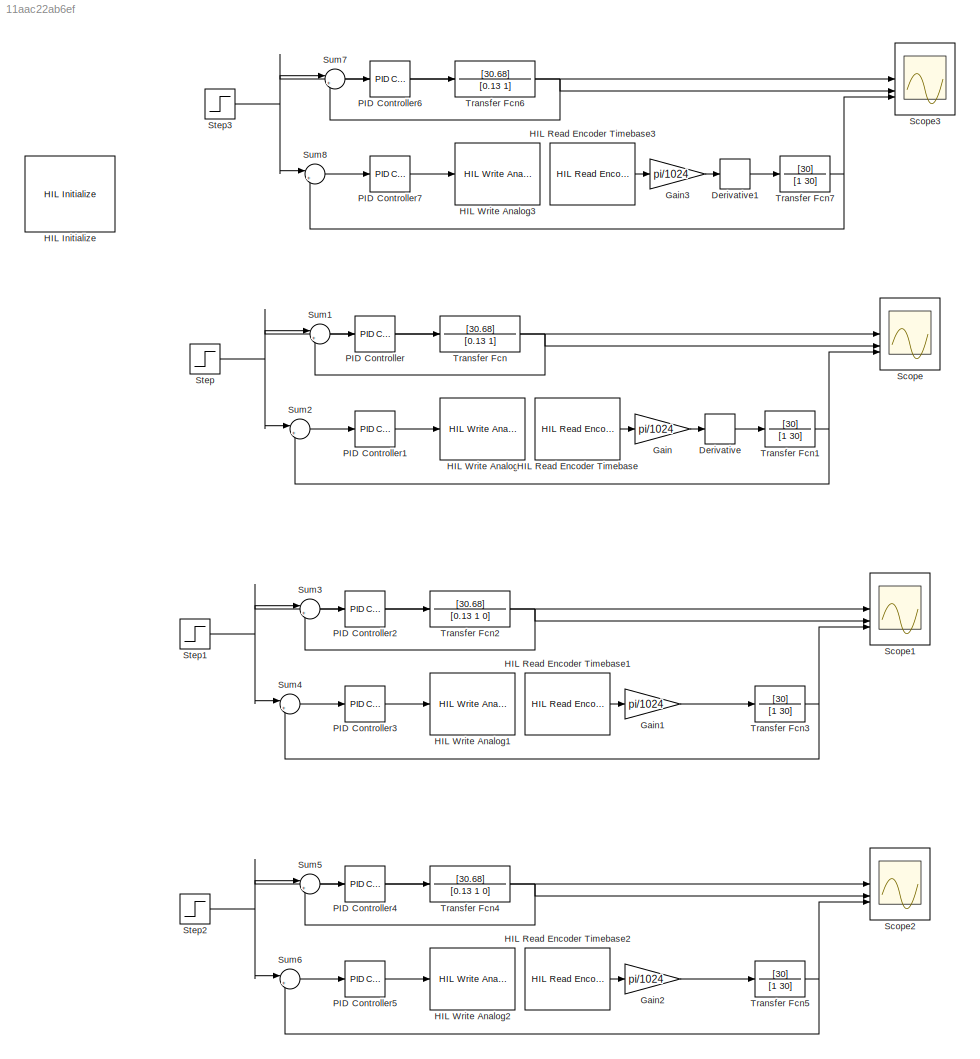
MODEL slx_11aac22ab6ef
KIND model
CONFIG AbsTol = auto
CONFIG EnableMultiTasking = on
CONFIG FixedStep = 0.002
CONFIG MaxStep = auto
CONFIG MinStep = auto
CONFIG RelTol = 1e-3
CONFIG SampleTimeConstraint = Unconstrained
CONFIG SolverName = ode1
CONFIG StartTime = 0.0
CONFIG StopTime = 5
BLOCK [Derivative] Derivative
  Commented = on
BLOCK [Derivative] Derivative1
BLOCK [Gain] Gain
  Commented = on
  Gain = pi/1024
BLOCK [Gain] Gain1
  Commented = on
  Gain = pi/1024
BLOCK [Gain] Gain2
  Commented = on
  Gain = pi/1024
BLOCK [Gain] Gain3
  Gain = pi/1024
BLOCK [Reference] HIL Initialize  REF=quarc_library/Data Acquisition/Generic/Configuration/HIL Initialize
  AttributesFormatString = %<object_name> (%<board_type>-%<board_number>)
  SourceBlock = quarc_library/Data Acquisition/Generic/Configuration/HIL Initialize
  SourceProductName = QUARC Targets
  SourceType = HIL Initialize
  UserDataPersistent = on
BLOCK [Reference] HIL Read Encoder Timebase  REF=quarc_library/Data Acquisition/Generic/Timebases/HIL Read Encoder
Timebase
  AttributesFormatString = (%<object_name>)
  Commented = on
  SourceBlock = quarc_library/Data Acquisition/Generic/Timebases/HIL Read Encoder\nTimebase
  SourceProductName = QUARC Targets
  SourceType = HIL Read Encoder Timebase
  UserDataPersistent = on
BLOCK [Reference] HIL Read Encoder Timebase1  REF=quarc_library/Data Acquisition/Generic/Timebases/HIL Read Encoder
Timebase
  AttributesFormatString = (%<object_name>)
  Commented = on
  SourceBlock = quarc_library/Data Acquisition/Generic/Timebases/HIL Read Encoder\nTimebase
  SourceProductName = QUARC Targets
  SourceType = HIL Read Encoder Timebase
  UserDataPersistent = on
BLOCK [Reference] HIL Read Encoder Timebase2  REF=quarc_library/Data Acquisition/Generic/Timebases/HIL Read Encoder
Timebase
  AttributesFormatString = (%<object_name>)
  Commented = on
  SourceBlock = quarc_library/Data Acquisition/Generic/Timebases/HIL Read Encoder\nTimebase
  SourceProductName = QUARC Targets
  SourceType = HIL Read Encoder Timebase
  UserDataPersistent = on
BLOCK [Reference] HIL Read Encoder Timebase3  REF=quarc_library/Data Acquisition/Generic/Timebases/HIL Read Encoder
Timebase
  AttributesFormatString = (%<object_name>)
  SourceBlock = quarc_library/Data Acquisition/Generic/Timebases/HIL Read Encoder\nTimebase
  SourceProductName = QUARC Targets
  SourceType = HIL Read Encoder Timebase
  UserDataPersistent = on
BLOCK [Reference] HIL Write Analog  REF=quarc_library/Data Acquisition/Generic/Immediate I//O/HIL Write Analog
  AttributesFormatString = (%<object_name>)
  Commented = on
  SourceBlock = quarc_library/Data Acquisition/Generic/Immediate I//O/HIL Write Analog
  SourceProductName = QUARC Targets
  SourceType = HIL Write Analog
  UserDataPersistent = on
BLOCK [Reference] HIL Write Analog1  REF=quarc_library/Data Acquisition/Generic/Immediate I//O/HIL Write Analog
  AttributesFormatString = (%<object_name>)
  Commented = on
  SourceBlock = quarc_library/Data Acquisition/Generic/Immediate I//O/HIL Write Analog
  SourceProductName = QUARC Targets
  SourceType = HIL Write Analog
  UserDataPersistent = on
BLOCK [Reference] HIL Write Analog2  REF=quarc_library/Data Acquisition/Generic/Immediate I//O/HIL Write Analog
  AttributesFormatString = (%<object_name>)
  Commented = on
  SourceBlock = quarc_library/Data Acquisition/Generic/Immediate I//O/HIL Write Analog
  SourceProductName = QUARC Targets
  SourceType = HIL Write Analog
  UserDataPersistent = on
BLOCK [Reference] HIL Write Analog3  REF=quarc_library/Data Acquisition/Generic/Immediate I//O/HIL Write Analog
  AttributesFormatString = (%<object_name>)
  SourceBlock = quarc_library/Data Acquisition/Generic/Immediate I//O/HIL Write Analog
  SourceProductName = QUARC Targets
  SourceType = HIL Write Analog
  UserDataPersistent = on
BLOCK [Reference] PID Controller  REF=slpidlib/PID Controller
  Commented = on
  LibrarySourceBlock = simulink/Continuous/PID Controller
  SourceBlock = slpidlib/PID Controller
  SourceType = PID 1dof
BLOCK [Reference] PID Controller1  REF=slpidlib/PID Controller
  Commented = on
  LibrarySourceBlock = simulink/Continuous/PID Controller
  SourceBlock = slpidlib/PID Controller
  SourceType = PID 1dof
BLOCK [Reference] PID Controller2  REF=slpidlib/PID Controller
  Commented = on
  LibrarySourceBlock = simulink/Continuous/PID Controller
  SourceBlock = slpidlib/PID Controller
  SourceType = PID 1dof
BLOCK [Reference] PID Controller3  REF=slpidlib/PID Controller
  Commented = on
  LibrarySourceBlock = simulink/Continuous/PID Controller
  SourceBlock = slpidlib/PID Controller
  SourceType = PID 1dof
BLOCK [Reference] PID Controller4  REF=slpidlib/PID Controller
  Commented = on
  LibrarySourceBlock = simulink/Continuous/PID Controller
  SourceBlock = slpidlib/PID Controller
  SourceType = PID 1dof
BLOCK [Reference] PID Controller5  REF=slpidlib/PID Controller
  Commented = on
  LibrarySourceBlock = simulink/Continuous/PID Controller
  SourceBlock = slpidlib/PID Controller
  SourceType = PID 1dof
BLOCK [Reference] PID Controller6  REF=slpidlib/PID Controller
  LibrarySourceBlock = simulink/Continuous/PID Controller
  SourceBlock = slpidlib/PID Controller
  SourceType = PID 1dof
BLOCK [Reference] PID Controller7  REF=slpidlib/PID Controller
  LibrarySourceBlock = simulink/Continuous/PID Controller
  SourceBlock = slpidlib/PID Controller
  SourceType = PID 1dof
BLOCK [Scope] Scope
  Commented = on
  Floating = off
  NumInputPorts = 3
  ScopeSpecificationString = Simulink.scopes.TimeScopeBlockCfg('CurrentConfiguration', extmgr.ConfigurationSet(extmgr.Configuration('Core','General UI',true),extmgr.Configuration('Core','Source UI',true),extmgr.Configuration('Sources','WiredSimulink',true),extmgr.Configuration('Visuals','Time Domain',true,'SerializedDisplays',{struct('MinYLimReal','-6.26022','MaxYLimReal','56.34202','YLabelReal','','MinYLimMag','0.00000','Max...<+2060ch>
BLOCK [Scope] Scope1
  Commented = on
  Floating = off
  NumInputPorts = 3
  ScopeSpecificationString = Simulink.scopes.TimeScopeBlockCfg('CurrentConfiguration', extmgr.ConfigurationSet(extmgr.Configuration('Core','General UI',true),extmgr.Configuration('Core','Source UI',true),extmgr.Configuration('Sources','WiredSimulink',true,'DataLoggingVariableName','ScopeData1'),extmgr.Configuration('Visuals','Time Domain',true,'SerializedDisplays',{struct('MinYLimReal','-0.3927','MaxYLimReal','3.53429','YLabe...<+2109ch>
BLOCK [Scope] Scope2
  Commented = on
  Floating = off
  NumInputPorts = 3
  ScopeSpecificationString = Simulink.scopes.TimeScopeBlockCfg('CurrentConfiguration', extmgr.ConfigurationSet(extmgr.Configuration('Core','General UI',true),extmgr.Configuration('Core','Source UI',true),extmgr.Configuration('Sources','WiredSimulink',true,'DataLoggingVariableName','ScopeData2'),extmgr.Configuration('Visuals','Time Domain',true,'SerializedDisplays',{struct('MinYLimReal','-0.39588','MaxYLimReal','3.56296','YLab...<+2132ch>
BLOCK [Scope] Scope3
  Floating = off
  NumInputPorts = 3
  ScopeSpecificationString = Simulink.scopes.TimeScopeBlockCfg('CurrentConfiguration', extmgr.ConfigurationSet(extmgr.Configuration('Core','General UI',true),extmgr.Configuration('Core','Source UI',true),extmgr.Configuration('Sources','WiredSimulink',true,'DataLoggingVariableName','ScopeData3'),extmgr.Configuration('Visuals','Time Domain',true,'SerializedDisplays',{struct('MinYLimReal','-6.26022','MaxYLimReal','56.34202','YLa...<+2116ch>
BLOCK [Step] Step
  After = 50
  Commented = on
  SampleTime = 0
BLOCK [Step] Step1
  After = pi
  Commented = on
  SampleTime = 0
BLOCK [Step] Step2
  After = pi
  Commented = on
  SampleTime = 0
BLOCK [Step] Step3
  After = 50
  SampleTime = 0
BLOCK [Sum] Sum1
  Commented = on
  Inputs = |+-
BLOCK [Sum] Sum2
  Commented = on
  Inputs = |+-
BLOCK [Sum] Sum3
  Commented = on
  Inputs = |+-
BLOCK [Sum] Sum4
  Commented = on
  Inputs = |+-
BLOCK [Sum] Sum5
  Commented = on
  Inputs = |+-
BLOCK [Sum] Sum6
  Commented = on
  Inputs = |+-
BLOCK [Sum] Sum7
  Inputs = |+-
BLOCK [Sum] Sum8
  Inputs = |+-
BLOCK [TransferFcn] Transfer Fcn
  Commented = on
  Denominator = [0.13 1]
  Numerator = [30.68]
BLOCK [TransferFcn] Transfer Fcn1
  Commented = on
  Denominator = [1 30]
  Numerator = [30]
BLOCK [TransferFcn] Transfer Fcn2
  Commented = on
  Denominator = [0.13 1 0]
  Numerator = [30.68]
BLOCK [TransferFcn] Transfer Fcn3
  Commented = on
  Denominator = [1 30]
  Numerator = [30]
BLOCK [TransferFcn] Transfer Fcn4
  Commented = on
  Denominator = [0.13 1 0]
  Numerator = [30.68]
BLOCK [TransferFcn] Transfer Fcn5
  Commented = on
  Denominator = [1 30]
  Numerator = [30]
BLOCK [TransferFcn] Transfer Fcn6
  Denominator = [0.13 1]
  Numerator = [30.68]
BLOCK [TransferFcn] Transfer Fcn7
  Denominator = [1 30]
  Numerator = [30]
LINE Derivative1:1 -> Transfer Fcn7:1
LINE Derivative:1 -> Transfer Fcn1:1
LINE Gain1:1 -> Transfer Fcn3:1
LINE Gain2:1 -> Transfer Fcn5:1
LINE Gain3:1 -> Derivative1:1
LINE Gain:1 -> Derivative:1
LINE HIL Read Encoder Timebase1:1 -> Gain1:1
LINE HIL Read Encoder Timebase2:1 -> Gain2:1
LINE HIL Read Encoder Timebase3:1 -> Gain3:1
LINE HIL Read Encoder Timebase:1 -> Gain:1
LINE PID Controller1:1 -> HIL Write Analog:1
LINE PID Controller2:1 -> Transfer Fcn2:1
LINE PID Controller3:1 -> HIL Write Analog1:1
LINE PID Controller4:1 -> Transfer Fcn4:1
LINE PID Controller5:1 -> HIL Write Analog2:1
LINE PID Controller6:1 -> Transfer Fcn6:1
LINE PID Controller7:1 -> HIL Write Analog3:1
LINE PID Controller:1 -> Transfer Fcn:1
NET Step1:1 -> Scope1:1, Sum3:1, Sum4:1
NET Step2:1 -> Scope2:1, Sum5:1, Sum6:1
NET Step3:1 -> Scope3:1, Sum7:1, Sum8:1
NET Step:1 -> Scope:1, Sum1:1, Sum2:1
LINE Sum1:1 -> PID Controller:1
LINE Sum2:1 -> PID Controller1:1
LINE Sum3:1 -> PID Controller2:1
LINE Sum4:1 -> PID Controller3:1
LINE Sum5:1 -> PID Controller4:1
LINE Sum6:1 -> PID Controller5:1
LINE Sum7:1 -> PID Controller6:1
LINE Sum8:1 -> PID Controller7:1
NET Transfer Fcn1:1 -> Scope:3, Sum2:2
NET Transfer Fcn2:1 -> Scope1:2, Sum3:2
NET Transfer Fcn3:1 -> Scope1:3, Sum4:2
NET Transfer Fcn4:1 -> Scope2:2, Sum5:2
NET Transfer Fcn5:1 -> Scope2:3, Sum6:2
NET Transfer Fcn6:1 -> Scope3:2, Sum7:2
NET Transfer Fcn7:1 -> Scope3:3, Sum8:2
NET Transfer Fcn:1 -> Scope:2, Sum1:2
note: NET lines group one-source signal fan-out (src -> all destinations, sorted); 1:1 wires keep LINE
